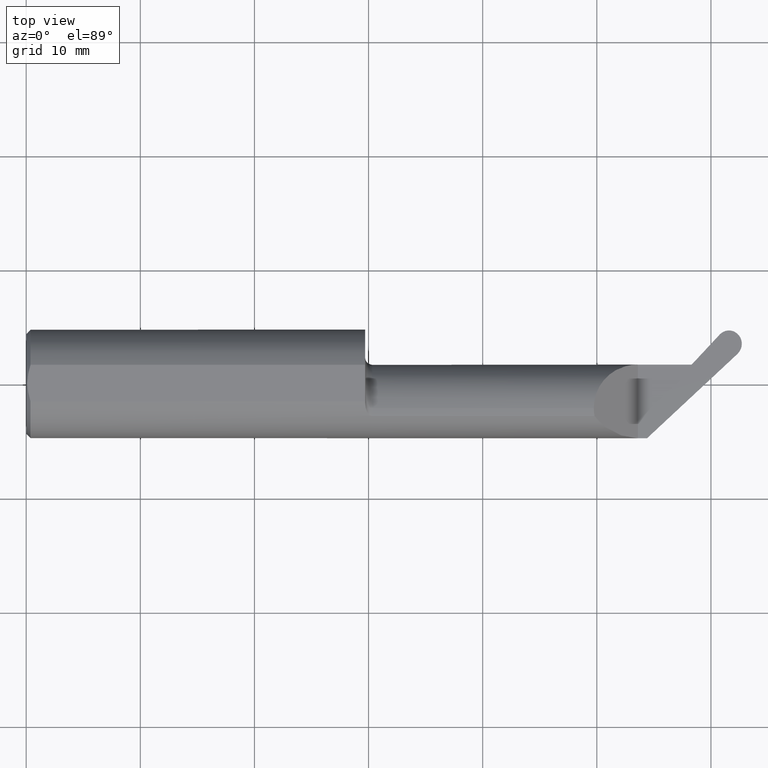
[diagram: clean part render]
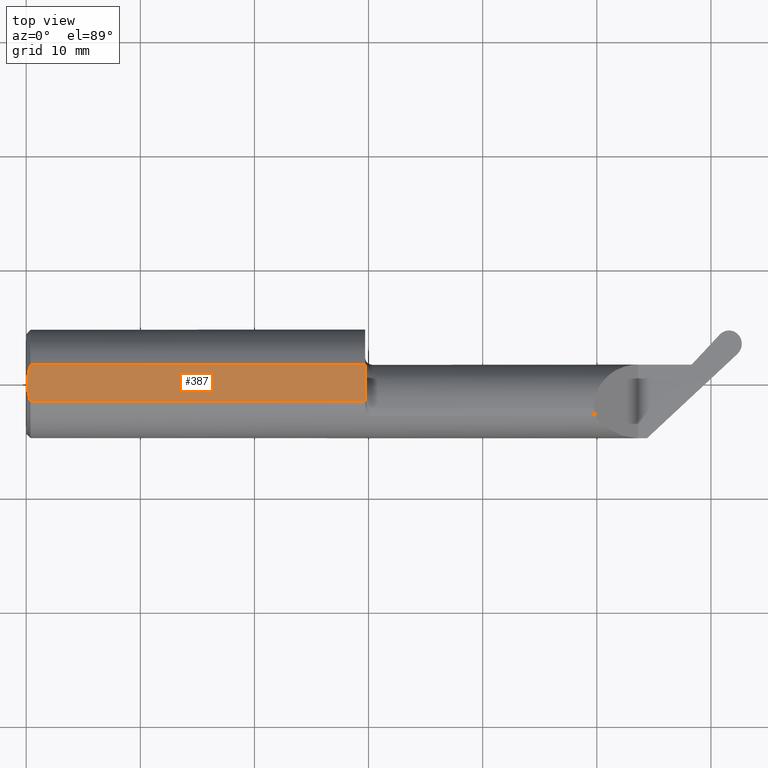
[diagram: same view with one face highlighted and labeled with its STEP entity id]
A machine part, top view. The second image highlights one B-rep face of the part: STEP entity #387.
In plain terms, the highlighted planar face has unit normal (-0, 0, -1).
Its self-contained STEP definition (entity closure, byte-faithful):
#1 = CARTESIAN_POINT ( 'NONE',  ( 0.004000000000000662748, 2.159664630158893524E-17, 0.1763499999999999512 ) ) ;
#19 = CARTESIAN_POINT ( 'NONE',  ( 1.169000000000000039, -0.06325108694718373226, 0.1763499999999999512 ) ) ;
#22 = DIRECTION ( 'NONE',  ( -0.000000000000000000, 0.000000000000000000, -1.000000000000000000 ) ) ;
#27 = DIRECTION ( 'NONE',  ( -1.000000000000000000, 0.000000000000000000, 0.000000000000000000 ) ) ;
#58 = CARTESIAN_POINT ( 'NONE',  ( 0.01500000000000016251, -0.06325108694718371838, 0.1763499999999999512 ) ) ;
#64 = CARTESIAN_POINT ( 'NONE',  ( 1.169000000000000039, 0.1000000000000000056, 0.1763499999999999512 ) ) ;
#68 = EDGE_CURVE ( 'NONE', #210, #160, #488, .T. ) ;
#142 = B_SPLINE_CURVE_WITH_KNOTS ( 'NONE', 3,
 ( #363, #615, #248, #308 ),
 .UNSPECIFIED., .F., .F.,
 ( 4, 4 ),
 ( 0.003872958501701102233, 0.005496776235116782039 ),
 .UNSPECIFIED. ) ;
#155 = AXIS2_PLACEMENT_3D ( 'NONE', #787, #22, #27 ) ;
#158 = EDGE_CURVE ( 'NONE', #788, #614, #693, .T. ) ;
#160 = VERTEX_POINT ( 'NONE', #58 ) ;
#172 = DIRECTION ( 'NONE',  ( -1.000000000000000000, -0.000000000000000000, -0.000000000000000000 ) ) ;
#208 = VECTOR ( 'NONE', #569, 39.37007874015748143 ) ;
#210 = VERTEX_POINT ( 'NONE', #1 ) ;
#245 = CARTESIAN_POINT ( 'NONE',  ( 0.004000000000000660146, -0.02175731046388920675, 0.1763499999999999512 ) ) ;
#248 = CARTESIAN_POINT ( 'NONE',  ( 0.004000000000000663615, 0.02174349820064852903, 0.1763499999999999512 ) ) ;
#264 = ORIENTED_EDGE ( 'NONE', *, *, #509, .F. ) ;
#302 = LINE ( 'NONE', #424, #823 ) ;
#308 = CARTESIAN_POINT ( 'NONE',  ( 0.004000000000000662748, 2.159664630158893524E-17, 0.1763499999999999512 ) ) ;
#345 = VERTEX_POINT ( 'NONE', #652 ) ;
#353 = ORIENTED_EDGE ( 'NONE', *, *, #748, .F. ) ;
#358 = CARTESIAN_POINT ( 'NONE',  ( 0.008096539338608519515, -0.04280300585742027875, 0.1763499999999999512 ) ) ;
#363 = CARTESIAN_POINT ( 'NONE',  ( 0.01500000000000079568, 0.06325108694718227509, 0.1763499999999999512 ) ) ;
#387 = ADVANCED_FACE ( 'NONE', ( #729 ), #582, .F. ) ;
#400 = EDGE_LOOP ( 'NONE', ( #807, #264, #706, #500, #353 ) ) ;
#416 = DIRECTION ( 'NONE',  ( 1.000000000000000000, 0.000000000000000000, 0.000000000000000000 ) ) ;
#424 = CARTESIAN_POINT ( 'NONE',  ( 2.500000000000000000, 0.06325108694718227509, 0.1763499999999999512 ) ) ;
#466 = CARTESIAN_POINT ( 'NONE',  ( 1.169000000000000039, 0.06325108694718227509, 0.1763499999999999512 ) ) ;
#488 = B_SPLINE_CURVE_WITH_KNOTS ( 'NONE', 3,
 ( #673, #245, #358, #747 ),
 .UNSPECIFIED., .F., .F.,
 ( 4, 4 ),
 ( 0.005496776235116782039, 0.007121625476792167730 ),
 .UNSPECIFIED. ) ;
#496 = VECTOR ( 'NONE', #172, 39.37007874015748143 ) ;
#500 = ORIENTED_EDGE ( 'NONE', *, *, #68, .T. ) ;
#504 = EDGE_CURVE ( 'NONE', #345, #210, #142, .T. ) ;
#509 = EDGE_CURVE ( 'NONE', #345, #788, #302, .T. ) ;
#569 = DIRECTION ( 'NONE',  ( 0.000000000000000000, -1.000000000000000000, 0.000000000000000000 ) ) ;
#582 = PLANE ( 'NONE',  #155 ) ;
#614 = VERTEX_POINT ( 'NONE', #19 ) ;
#615 = CARTESIAN_POINT ( 'NONE',  ( 0.008079618022130571897, 0.04275288484297757458, 0.1763499999999999512 ) ) ;
#652 = CARTESIAN_POINT ( 'NONE',  ( 0.01500000000000079568, 0.06325108694718227509, 0.1763499999999999512 ) ) ;
#654 = LINE ( 'NONE', #800, #496 ) ;
#673 = CARTESIAN_POINT ( 'NONE',  ( 0.004000000000000662748, 2.159664630158893524E-17, 0.1763499999999999512 ) ) ;
#693 = LINE ( 'NONE', #64, #208 ) ;
#706 = ORIENTED_EDGE ( 'NONE', *, *, #504, .T. ) ;
#729 = FACE_OUTER_BOUND ( 'NONE', #400, .T. ) ;
#747 = CARTESIAN_POINT ( 'NONE',  ( 0.01500000000000016251, -0.06325108694718371838, 0.1763499999999999512 ) ) ;
#748 = EDGE_CURVE ( 'NONE', #614, #160, #654, .T. ) ;
#787 = CARTESIAN_POINT ( 'NONE',  ( 0.000000000000000000, 0.1000000000000000056, 0.1763499999999999512 ) ) ;
#788 = VERTEX_POINT ( 'NONE', #466 ) ;
#800 = CARTESIAN_POINT ( 'NONE',  ( 2.500000000000000000, -0.06325108694718227509, 0.1763499999999999512 ) ) ;
#807 = ORIENTED_EDGE ( 'NONE', *, *, #158, .F. ) ;
#823 = VECTOR ( 'NONE', #416, 39.37007874015748143 ) ;